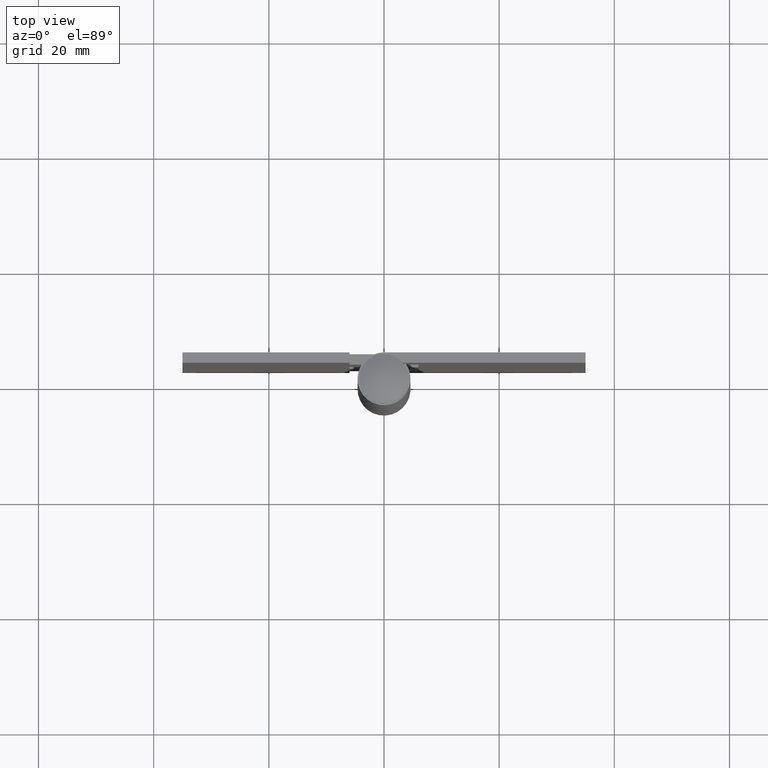
[diagram: clean part render]
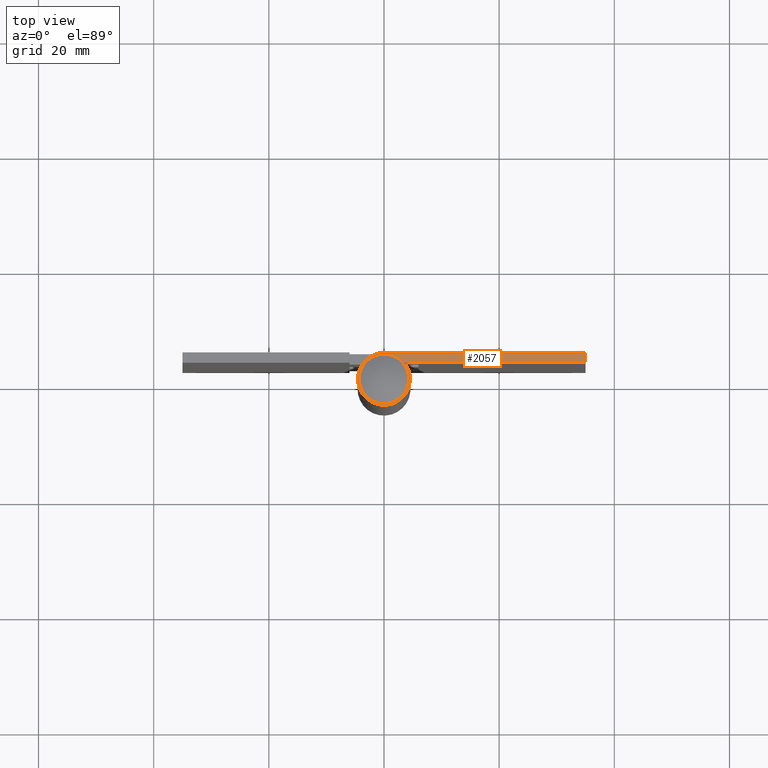
[diagram: same view with one face highlighted and labeled with its STEP entity id]
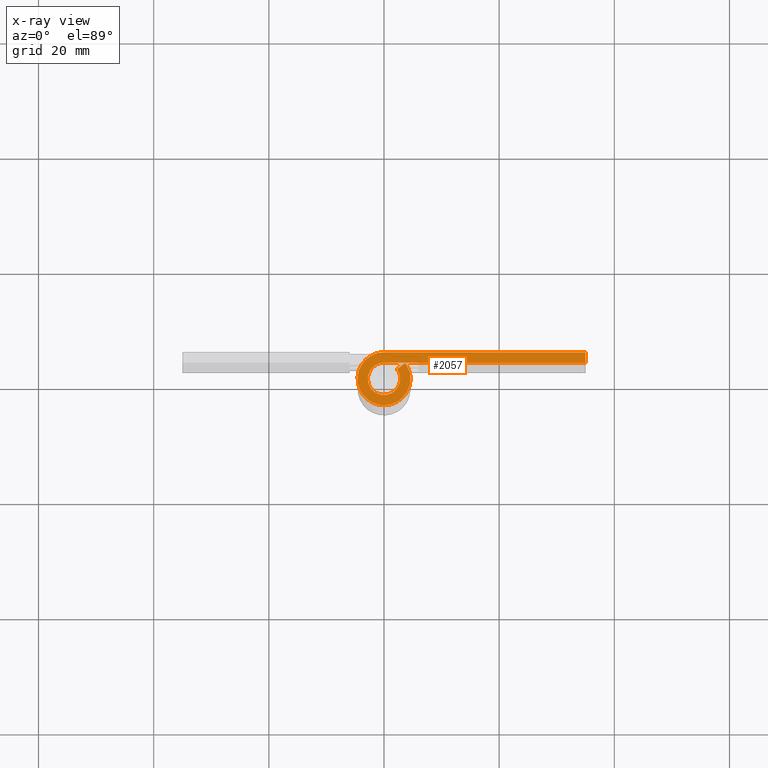
[diagram: x-ray of the same camera — body ghosted, the highlighted face saturated]
A machine part, top view. The second image highlights one B-rep face of the part: STEP entity #2057.
The next image is the same camera in x-ray: the body ghosted, the highlighted face saturated — about 0% of this face is hidden behind the body in this view.
In plain terms, the highlighted face is a freeform B-spline surface patch.
Its self-contained STEP definition (entity closure, byte-faithful):
#1329=CARTESIAN_POINT('',(2.244552775204905,1.673912434782615,102.0));
#1330=VERTEX_POINT('',#1329);
#1336=CARTESIAN_POINT('',(3.687479559265210,2.749999000000000,102.0));
#1337=VERTEX_POINT('',#1336);
#1338=CARTESIAN_POINT('',(3.687479559265210,2.749999000000000,102.0));
#1339=CARTESIAN_POINT('',(2.244552775204905,1.673912434782615,102.0));
#1340=QUASI_UNIFORM_CURVE('',1,(#1338,#1339),.UNSPECIFIED.,.F.,.U.);
#1341=EDGE_CURVE('',#1337,#1330,#1340,.T.);
#1415=CARTESIAN_POINT('',(0.004289521649760,4.599998000000000,102.0));
#1416=VERTEX_POINT('',#1415);
#1417=CARTESIAN_POINT('',(3.687479559265210,2.749999000000000,102.0));
#1418=CARTESIAN_POINT('',(3.888801546764150,2.480105325014175,102.000000000000100));
#1419=CARTESIAN_POINT('',(4.280946989379515,1.812408276842556,102.000000000000100));
#1420=CARTESIAN_POINT('',(4.571890616241014,0.800806475233826,101.999999999999700));
#1421=CARTESIAN_POINT('',(4.624832560558526,-0.260408770982931,102.000000000000100));
#1422=CARTESIAN_POINT('',(4.493652971616798,-1.105733904800268,101.999999999998000));
#1423=CARTESIAN_POINT('',(4.191514416118938,-1.953879801583168,102.000000000003790));
#1424=CARTESIAN_POINT('',(3.774989057666186,-2.681412565520370,101.999999999993310));
#1425=CARTESIAN_POINT('',(3.117609446489853,-3.433054025218202,102.000000000008000));
#1426=CARTESIAN_POINT('',(2.296469972141924,-4.035008738063228,101.999999999993900));
#1427=CARTESIAN_POINT('',(1.374155921492376,-4.421876706454497,102.000000000008600));
#1428=CARTESIAN_POINT('',(0.537716708030686,-4.590152866770059,101.999999999998590));
#1429=CARTESIAN_POINT('',(-0.298251953032390,-4.616297979435139,101.999999999997800));
#1430=CARTESIAN_POINT('',(-1.142927780674255,-4.487147526803114,102.000000000006000));
#1431=CARTESIAN_POINT('',(-1.884102228599943,-4.216163335548872,101.999999999991300));
#1432=CARTESIAN_POINT('',(-2.573957800452416,-3.837453351552191,102.000000000003690));
#1433=CARTESIAN_POINT('',(-3.208735343580371,-3.340607558049751,101.999999999998710));
#1434=CARTESIAN_POINT('',(-3.771077277752944,-2.676579617057146,102.000000000000600));
#1435=CARTESIAN_POINT('',(-4.166034954523297,-1.994569472272615,102.000000000000800));
#1436=CARTESIAN_POINT('',(-4.472870001565486,-1.199236114984018,101.999999999994900));
#1437=CARTESIAN_POINT('',(-4.619862593230099,-0.339582802972248,102.000000000008300));
#1438=CARTESIAN_POINT('',(-4.584905859949003,0.673539806130740,101.999999999983500));
#1439=CARTESIAN_POINT('',(-4.366577248146796,1.551783001859756,102.000000000008700));
#1440=CARTESIAN_POINT('',(-3.965269854151690,2.376496150591608,101.999999999996800));
#1441=CARTESIAN_POINT('',(-3.512943468527174,3.002983965886141,102.000000000001090));
#1442=CARTESIAN_POINT('',(-2.951610967657809,3.556178152867362,101.999999999999200));
#1443=CARTESIAN_POINT('',(-2.186819837816758,4.091854120698060,102.000000000002700));
#1444=CARTESIAN_POINT('',(-1.182311878832236,4.499950585733260,101.999999999993410));
#1445=CARTESIAN_POINT('',(-0.380526571766725,4.600450706568250,102.000000000009710));
#1446=CARTESIAN_POINT('',(0.004289521649760,4.599998000000000,102.0));
#1447=B_SPLINE_CURVE_WITH_KNOTS('',3,(#1417,#1418,#1419,#1420,#1421,#1422,#1423,#1424,#1425,#1426,#1427,#1428,#1429,#1430,#1431,#1432,#1433,#1434,#1435,#1436,#1437,#1438,#1439,#1440,#1441,#1442,#1443,#1444,#1445,#1446),.UNSPECIFIED.,.F.,.U.,(4,1,1,1,1,1,1,1,1,1,1,1,1,1,1,1,1,1,1,1,1,1,1,1,1,1,1,4),(0.000000589811780,1.010148027279797,2.308954493626480,3.126732970442710,4.185037923663511,4.858462484882658,5.820532225491359,6.686357108443065,7.840869610581422,8.851050707146928,9.668815176741516,10.390380739928769,11.352480403719399,12.218333306731241,12.747406291822770,13.709487399380111,14.623462632565630,15.345027260705461,16.066592573546391,17.172972446100669,17.942664119526519,19.097048548706329,19.866738472706711,20.684507876119930,21.406070386957719,22.223843646260740,23.474569067978148,24.629007596606989),.UNSPECIFIED.);
#1448=EDGE_CURVE('',#1337,#1416,#1447,.T.);
#1602=CARTESIAN_POINT('',(35.0,4.599998000000000,102.0));
#1603=VERTEX_POINT('',#1602);
#1604=CARTESIAN_POINT('',(35.0,4.599998000000000,102.0));
#1605=CARTESIAN_POINT('',(0.004289521649760,4.599998000000000,102.0));
#1606=QUASI_UNIFORM_CURVE('',1,(#1604,#1605),.UNSPECIFIED.,.F.,.U.);
#1607=EDGE_CURVE('',#1603,#1416,#1606,.T.);
#1697=CARTESIAN_POINT('',(0.0,2.799999000000000,102.0));
#1698=VERTEX_POINT('',#1697);
#1704=CARTESIAN_POINT('',(2.244552775204905,1.673912434782615,102.0));
#1705=CARTESIAN_POINT('',(2.361240504243331,1.517487136805863,101.999999999999900));
#1706=CARTESIAN_POINT('',(2.571760451364713,1.163223360803444,102.000000000000100));
#1707=CARTESIAN_POINT('',(2.755322992564879,0.603159620186266,101.999999999999800));
#1708=CARTESIAN_POINT('',(2.814206599115399,0.057408358807662,102.000000000000200));
#1709=CARTESIAN_POINT('',(2.775788806844656,-0.489647909659885,101.999999999999500));
#1710=CARTESIAN_POINT('',(2.640103405108175,-0.982092643812113,102.000000000000600));
#1711=CARTESIAN_POINT('',(2.406904034914213,-1.456199454101527,101.999999999999500));
#1712=CARTESIAN_POINT('',(2.051810086053383,-1.949386150809521,101.999999999999600));
#1713=CARTESIAN_POINT('',(1.520938135786766,-2.392482221302698,102.000000000000900));
#1714=CARTESIAN_POINT('',(0.894041661707029,-2.675088147646622,102.000000000000200));
#1715=CARTESIAN_POINT('',(0.261950625741705,-2.812905434333960,102.000000000000100));
#1716=CARTESIAN_POINT('',(-0.447093912799549,-2.802048550117750,101.999999999999900));
#1717=CARTESIAN_POINT('',(-1.107127268905644,-2.599472662541912,102.0));
#1718=CARTESIAN_POINT('',(-1.682393593281565,-2.264090809987632,102.0));
#1719=CARTESIAN_POINT('',(-2.148623285729283,-1.841173234488564,102.000000000000200));
#1720=CARTESIAN_POINT('',(-2.495135394784809,-1.315652704132865,101.999999999999900));
#1721=CARTESIAN_POINT('',(-2.724073013487972,-0.732185076451835,101.999999999999500));
#1722=CARTESIAN_POINT('',(-2.814415014100938,-0.188873548638101,102.000000000002100));
#1723=CARTESIAN_POINT('',(-2.786676352024705,0.437248644581740,101.999999999996700));
#1724=CARTESIAN_POINT('',(-2.638707308321217,1.008481165709071,102.000000000001290));
#1725=CARTESIAN_POINT('',(-2.310385705438387,1.634015236268930,101.999999999999600));
#1726=CARTESIAN_POINT('',(-1.887405776655612,2.102581281936074,102.000000000000100));
#1727=CARTESIAN_POINT('',(-1.372327215942436,2.459692984098702,102.0));
#1728=CARTESIAN_POINT('',(-0.780583274953816,2.722761255874707,102.000000000000800));
#1729=CARTESIAN_POINT('',(-0.292767332690301,2.800149079201479,101.999999999998000));
#1730=CARTESIAN_POINT('',(0.0,2.799999000000000,102.0));
#1731=B_SPLINE_CURVE_WITH_KNOTS('',3,(#1704,#1705,#1706,#1707,#1708,#1709,#1710,#1711,#1712,#1713,#1714,#1715,#1716,#1717,#1718,#1719,#1720,#1721,#1722,#1723,#1724,#1725,#1726,#1727,#1728,#1729,#1730),.UNSPECIFIED.,.F.,.U.,(4,1,1,1,1,1,1,1,1,1,1,1,1,1,1,1,1,1,1,1,1,1,1,1,4),(-0.000000423286270,0.585470624743090,1.229556824984332,1.756539366761546,2.224960734055786,2.869033045253364,3.278889039501124,3.805818699486371,4.684079114180328,5.328170558210305,5.855146099590463,6.616335560768331,7.436051442299492,7.904404834340416,8.607030302110696,9.309675763721566,9.778102969556313,10.480746312493560,10.949174330878099,11.651694958569630,12.237217493618161,13.056965886456020,13.525393092546530,14.110900855649369,14.989163561256641),.UNSPECIFIED.);
#1732=EDGE_CURVE('',#1330,#1698,#1731,.T.);
#2034=CARTESIAN_POINT('',(-6.578017614687211,-5.059518087048719,102.0));
#2035=CARTESIAN_POINT('',(36.978020875507170,-5.059518087048719,102.0));
#2036=CARTESIAN_POINT('',(-6.578017614687211,5.059537091871820,102.0));
#2037=CARTESIAN_POINT('',(36.978020875507170,5.059537091871820,102.0));
#2038=B_SPLINE_SURFACE_WITH_KNOTS('',1,1,((#2034,#2036),(#2035,#2037)),.UNSPECIFIED.,.F.,.F.,.U.,(2,2),(2,2),(0.0,43.556038490194382),(0.0,10.119055178920540),.UNSPECIFIED.);
#2039=ORIENTED_EDGE('',*,*,#1732,.T.);
#2040=CARTESIAN_POINT('',(35.0,2.799999000000000,102.0));
#2041=VERTEX_POINT('',#2040);
#2042=CARTESIAN_POINT('',(0.0,2.799999000000000,102.0));
#2043=CARTESIAN_POINT('',(35.0,2.799999000000000,102.0));
#2044=QUASI_UNIFORM_CURVE('',1,(#2042,#2043),.UNSPECIFIED.,.F.,.U.);
#2045=EDGE_CURVE('',#1698,#2041,#2044,.T.);
#2046=ORIENTED_EDGE('',*,*,#2045,.T.);
#2047=CARTESIAN_POINT('',(35.0,2.799999000000000,102.0));
#2048=CARTESIAN_POINT('',(35.0,4.599998000000000,102.0));
#2049=QUASI_UNIFORM_CURVE('',1,(#2047,#2048),.UNSPECIFIED.,.F.,.U.);
#2050=EDGE_CURVE('',#2041,#1603,#2049,.T.);
#2051=ORIENTED_EDGE('',*,*,#2050,.T.);
#2052=ORIENTED_EDGE('',*,*,#1607,.T.);
#2053=ORIENTED_EDGE('',*,*,#1448,.F.);
#2054=ORIENTED_EDGE('',*,*,#1341,.T.);
#2055=EDGE_LOOP('',(#2039,#2046,#2051,#2052,#2053,#2054));
#2056=FACE_OUTER_BOUND('',#2055,.T.);
#2057=ADVANCED_FACE('',(#2056),#2038,.T.);